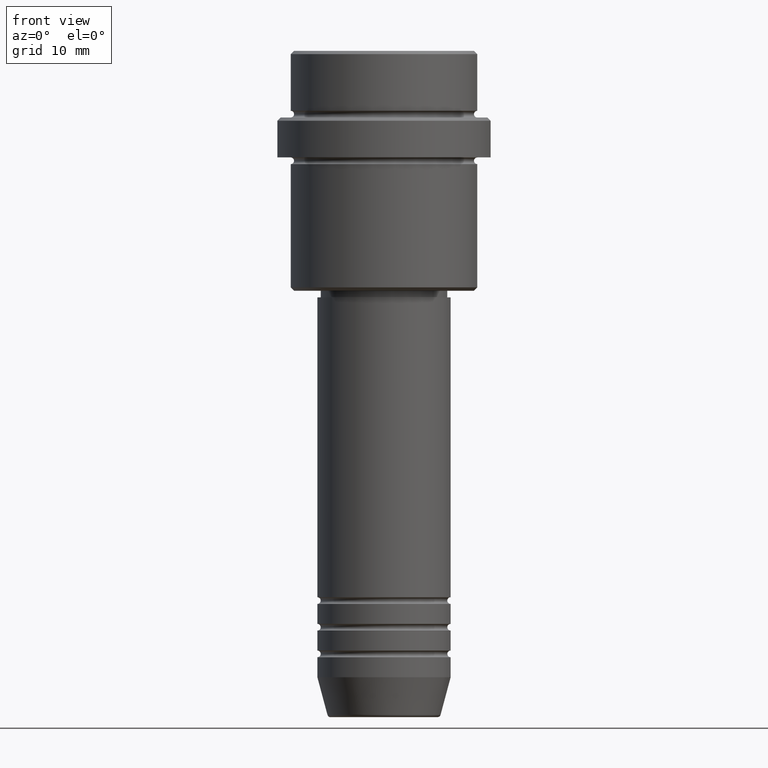
[diagram: clean part render]
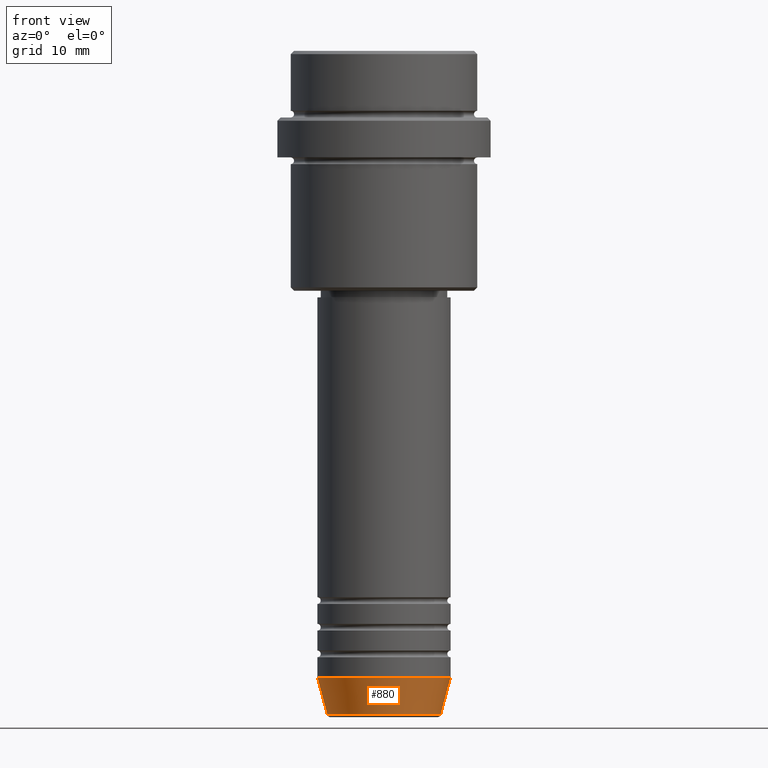
[diagram: same view with one face highlighted and labeled with its STEP entity id]
A machine part, front view. The second image highlights one B-rep face of the part: STEP entity #880.
In plain terms, the highlighted conical surface has half-angle 15 deg.
Its self-contained STEP definition (entity closure, byte-faithful):
#19 = AXIS2_PLACEMENT_3D ( 'NONE', #692, #337, #242 ) ;
#61 = DIRECTION ( 'NONE',  ( 1.000000000000000000, 0.000000000000000000, 0.000000000000000000 ) ) ;
#134 = CARTESIAN_POINT ( 'NONE',  ( 10.00000000000000000, 0.000000000000000000, -94.00000000000000000 ) ) ;
#138 = LINE ( 'NONE', #134, #601 ) ;
#143 = CARTESIAN_POINT ( 'NONE',  ( -8.491604264568312743, 1.132284198685156584E-15, -99.62940952255127058 ) ) ;
#160 = CARTESIAN_POINT ( 'NONE',  ( 10.00000000000000000, 0.000000000000000000, -94.00000000000000000 ) ) ;
#163 = CONICAL_SURFACE ( 'NONE', #19, 10.00000000000000000, 0.2617993877991498519 ) ;
#238 = ORIENTED_EDGE ( 'NONE', *, *, #1019, .T. ) ;
#242 = DIRECTION ( 'NONE',  ( 1.000000000000000000, 0.000000000000000000, 0.000000000000000000 ) ) ;
#254 = CARTESIAN_POINT ( 'NONE',  ( 0.000000000000000000, 0.000000000000000000, -99.62940952255127058 ) ) ;
#293 = EDGE_CURVE ( 'NONE', #1261, #780, #872, .T. ) ;
#337 = DIRECTION ( 'NONE',  ( -0.000000000000000000, -0.000000000000000000, 1.000000000000000000 ) ) ;
#460 = DIRECTION ( 'NONE',  ( 0.2588190451025211281, 0.000000000000000000, 0.9659258262890680902 ) ) ;
#529 = EDGE_CURVE ( 'NONE', #1105, #1057, #138, .T. ) ;
#540 = DIRECTION ( 'NONE',  ( -0.2588190451025211281, 3.169619151431769872E-17, 0.9659258262890680902 ) ) ;
#544 = CARTESIAN_POINT ( 'NONE',  ( -10.00000000000000000, 1.224646799147353256E-15, -94.00000000000000000 ) ) ;
#565 = ORIENTED_EDGE ( 'NONE', *, *, #293, .F. ) ;
#600 = AXIS2_PLACEMENT_3D ( 'NONE', #1391, #855, #1279 ) ;
#601 = VECTOR ( 'NONE', #460, 1000.000000000000114 ) ;
#674 = FACE_OUTER_BOUND ( 'NONE', #940, .T. ) ;
#683 = CARTESIAN_POINT ( 'NONE',  ( 8.491604264568312743, 0.000000000000000000, -99.62940952255127058 ) ) ;
#688 = DIRECTION ( 'NONE',  ( -0.000000000000000000, -0.000000000000000000, 1.000000000000000000 ) ) ;
#692 = CARTESIAN_POINT ( 'NONE',  ( 0.000000000000000000, 0.000000000000000000, -94.00000000000000000 ) ) ;
#731 = CIRCLE ( 'NONE', #600, 10.00000000000000000 ) ;
#780 = VERTEX_POINT ( 'NONE', #956 ) ;
#813 = ORIENTED_EDGE ( 'NONE', *, *, #529, .T. ) ;
#855 = DIRECTION ( 'NONE',  ( -0.000000000000000000, -0.000000000000000000, 1.000000000000000000 ) ) ;
#872 = LINE ( 'NONE', #544, #1126 ) ;
#880 = ADVANCED_FACE ( 'NONE', ( #674 ), #163, .T. ) ;
#940 = EDGE_LOOP ( 'NONE', ( #565, #238, #813, #994 ) ) ;
#956 = CARTESIAN_POINT ( 'NONE',  ( -10.00000000000000000, 1.224646799147353256E-15, -94.00000000000000000 ) ) ;
#982 = AXIS2_PLACEMENT_3D ( 'NONE', #254, #688, #61 ) ;
#994 = ORIENTED_EDGE ( 'NONE', *, *, #1201, .F. ) ;
#1019 = EDGE_CURVE ( 'NONE', #1261, #1105, #1374, .T. ) ;
#1057 = VERTEX_POINT ( 'NONE', #160 ) ;
#1105 = VERTEX_POINT ( 'NONE', #683 ) ;
#1126 = VECTOR ( 'NONE', #540, 1000.000000000000114 ) ;
#1201 = EDGE_CURVE ( 'NONE', #780, #1057, #731, .T. ) ;
#1261 = VERTEX_POINT ( 'NONE', #143 ) ;
#1279 = DIRECTION ( 'NONE',  ( 1.000000000000000000, 0.000000000000000000, 0.000000000000000000 ) ) ;
#1374 = CIRCLE ( 'NONE', #982, 8.491604264568312743 ) ;
#1391 = CARTESIAN_POINT ( 'NONE',  ( 0.000000000000000000, 0.000000000000000000, -94.00000000000000000 ) ) ;